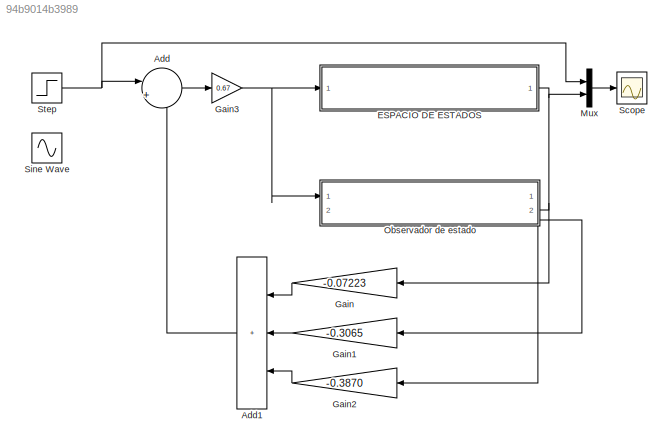
MODEL slx_94b9014b3989
KIND model
CONFIG AbsTol = auto
CONFIG EnableMultiTasking = off
CONFIG FixedStep = auto
CONFIG MaxStep = auto
CONFIG MinStep = auto
CONFIG RelTol = 1e-3
CONFIG SampleTimeConstraint = Unconstrained
CONFIG SolverName = VariableStepAuto
CONFIG StartTime = 0.0
CONFIG StopTime = 10
BLOCK [Sum] Add
  Inputs = |+-
  Ports = [2, 1]
BLOCK [Sum] Add1
  IconShape = rectangular
  Inputs = +++
  Ports = [3, 1]
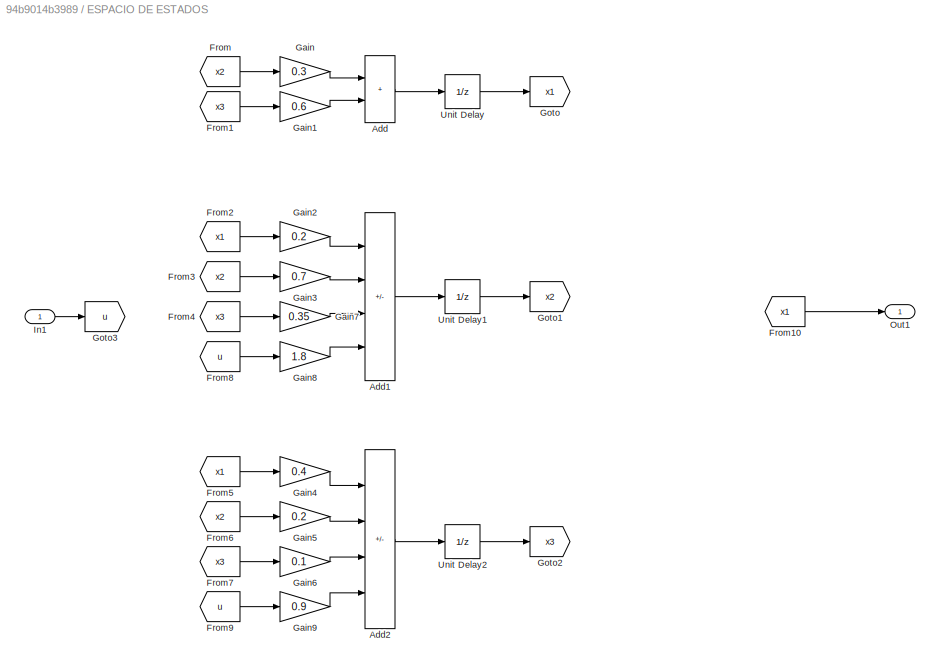
BLOCK [SubSystem] ESPACIO DE ESTADOS
  Ports = [1, 1]
  RequestExecContextInheritance = off
BLOCK [Sum] ESPACIO DE ESTADOS/Add
  IconShape = rectangular
  Ports = [2, 1]
BLOCK [Sum] ESPACIO DE ESTADOS/Add1
  IconShape = rectangular
  Inputs = +--+
  Ports = [4, 1]
BLOCK [Sum] ESPACIO DE ESTADOS/Add2
  IconShape = rectangular
  Inputs = -+++
  Ports = [4, 1]
BLOCK [From] ESPACIO DE ESTADOS/From
  GotoTag = x2
BLOCK [From] ESPACIO DE ESTADOS/From1
  GotoTag = x3
BLOCK [From] ESPACIO DE ESTADOS/From10
  GotoTag = x1
BLOCK [From] ESPACIO DE ESTADOS/From2
  GotoTag = x1
BLOCK [From] ESPACIO DE ESTADOS/From3
  GotoTag = x2
BLOCK [From] ESPACIO DE ESTADOS/From4
  GotoTag = x3
BLOCK [From] ESPACIO DE ESTADOS/From5
  GotoTag = x1
BLOCK [From] ESPACIO DE ESTADOS/From6
  GotoTag = x2
BLOCK [From] ESPACIO DE ESTADOS/From7
  GotoTag = x3
BLOCK [From] ESPACIO DE ESTADOS/From8
  GotoTag = u
BLOCK [From] ESPACIO DE ESTADOS/From9
  GotoTag = u
BLOCK [Gain] ESPACIO DE ESTADOS/Gain
  Gain = 0.3
BLOCK [Gain] ESPACIO DE ESTADOS/Gain1
  Gain = 0.6
BLOCK [Gain] ESPACIO DE ESTADOS/Gain2
  Gain = 0.2
BLOCK [Gain] ESPACIO DE ESTADOS/Gain3
  Gain = 0.7
BLOCK [Gain] ESPACIO DE ESTADOS/Gain4
  Gain = 0.4
BLOCK [Gain] ESPACIO DE ESTADOS/Gain5
  Gain = 0.2
BLOCK [Gain] ESPACIO DE ESTADOS/Gain6
  Gain = 0.1
BLOCK [Gain] ESPACIO DE ESTADOS/Gain7
  Gain = 0.35
BLOCK [Gain] ESPACIO DE ESTADOS/Gain8
  Gain = 1.8
BLOCK [Gain] ESPACIO DE ESTADOS/Gain9
  Gain = 0.9
BLOCK [Goto] ESPACIO DE ESTADOS/Goto
  GotoTag = x1
BLOCK [Goto] ESPACIO DE ESTADOS/Goto1
  GotoTag = x2
BLOCK [Goto] ESPACIO DE ESTADOS/Goto2
  GotoTag = x3
BLOCK [Goto] ESPACIO DE ESTADOS/Goto3
  GotoTag = u
BLOCK [Inport] ESPACIO DE ESTADOS/In1
BLOCK [Outport] ESPACIO DE ESTADOS/Out1
BLOCK [UnitDelay] ESPACIO DE ESTADOS/Unit Delay
  HasFrameUpgradeWarning = on
  SampleTime = -1
BLOCK [UnitDelay] ESPACIO DE ESTADOS/Unit Delay1
  HasFrameUpgradeWarning = on
  SampleTime = -1
BLOCK [UnitDelay] ESPACIO DE ESTADOS/Unit Delay2
  HasFrameUpgradeWarning = on
  SampleTime = -1
BLOCK [Gain] Gain
  Gain = -0.07223
BLOCK [Gain] Gain1
  Gain = -0.3065
BLOCK [Gain] Gain2
  Gain = -0.3870
BLOCK [Gain] Gain3
  Gain = 0.67
BLOCK [Mux] Mux
  DisplayOption = bar
  Inputs = 2
  Ports = [2, 1]
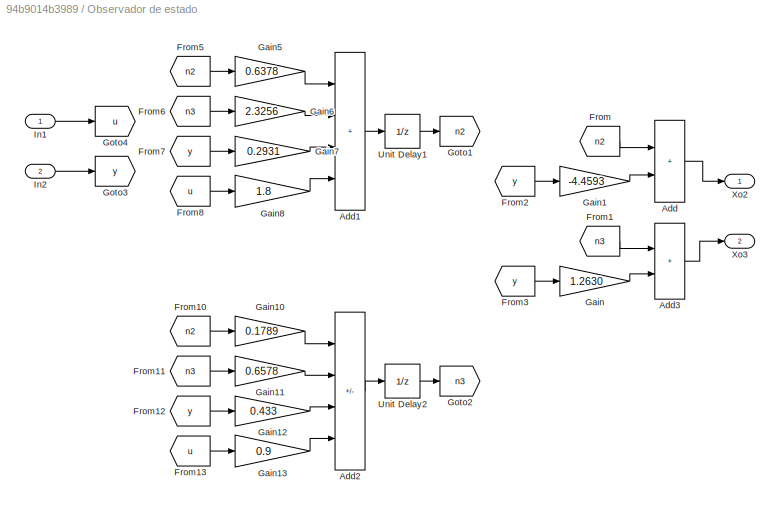
BLOCK [SubSystem] Observador de estado
  PortSchema = {"entries":[{"content":{"sides":[{"content":{"connectorIds":["In1"]},"type":"ConnectorPlacement.EquallySpacedRectSide","uuid":"9933af09-e30a-4a3c-a0e3-dffec2223d50"},{"content":{"connectorIds":["In2"],"side":"RIGHT"},"type":"ConnectorPlacement.EquallySpacedRectSide","uuid":"a5fb4d5c-b0b2-4fa6-9ed9-ad5917edf078"},{"content":{"side":"TOP"},"type":"ConnectorPlacement.EquallySpacedRectSide","uuid":"67...<+378ch>
  Ports = [2, 2]
  RequestExecContextInheritance = off
BLOCK [Sum] Observador de estado/Add
  IconShape = rectangular
  Ports = [2, 1]
BLOCK [Sum] Observador de estado/Add1
  IconShape = rectangular
  Inputs = ++++
  Ports = [4, 1]
BLOCK [Sum] Observador de estado/Add2
  IconShape = rectangular
  Inputs = ---+
  Ports = [4, 1]
BLOCK [Sum] Observador de estado/Add3
  IconShape = rectangular
  Ports = [2, 1]
BLOCK [From] Observador de estado/From
  GotoTag = n2
BLOCK [From] Observador de estado/From1
  GotoTag = n3
BLOCK [From] Observador de estado/From10
  GotoTag = n2
BLOCK [From] Observador de estado/From11
  GotoTag = n3
BLOCK [From] Observador de estado/From12
  GotoTag = y
BLOCK [From] Observador de estado/From13
  GotoTag = u
BLOCK [From] Observador de estado/From2
  GotoTag = y
BLOCK [From] Observador de estado/From3
  GotoTag = y
BLOCK [From] Observador de estado/From5
  GotoTag = n2
BLOCK [From] Observador de estado/From6
  GotoTag = n3
BLOCK [From] Observador de estado/From7
  GotoTag = y
BLOCK [From] Observador de estado/From8
  GotoTag = u
BLOCK [Gain] Observador de estado/Gain
  Gain = 1.2630
BLOCK [Gain] Observador de estado/Gain1
  Gain = -4.4593
BLOCK [Gain] Observador de estado/Gain10
  Gain = 0.1789
BLOCK [Gain] Observador de estado/Gain11
  Gain = 0.6578
BLOCK [Gain] Observador de estado/Gain12
  Gain = 0.433
BLOCK [Gain] Observador de estado/Gain13
  Gain = 0.9
BLOCK [Gain] Observador de estado/Gain5
  Gain = 0.6378
BLOCK [Gain] Observador de estado/Gain6
  Gain = 2.3256
BLOCK [Gain] Observador de estado/Gain7
  Gain = 0.2931
BLOCK [Gain] Observador de estado/Gain8
  Gain = 1.8
BLOCK [Goto] Observador de estado/Goto1
  GotoTag = n2
BLOCK [Goto] Observador de estado/Goto2
  GotoTag = n3
BLOCK [Goto] Observador de estado/Goto3
  GotoTag = y
BLOCK [Goto] Observador de estado/Goto4
  GotoTag = u
BLOCK [Inport] Observador de estado/In1
BLOCK [Inport] Observador de estado/In2
  Port = 2
BLOCK [UnitDelay] Observador de estado/Unit Delay1
  HasFrameUpgradeWarning = on
  SampleTime = -1
BLOCK [UnitDelay] Observador de estado/Unit Delay2
  HasFrameUpgradeWarning = on
  SampleTime = -1
BLOCK [Outport] Observador de estado/Xo2
BLOCK [Outport] Observador de estado/Xo3
  Port = 2
BLOCK [Scope] Scope
  Floating = off
  NumInputPorts = 1
  Ports = [1]
  ScopeSpecificationString = Simulink.scopes.TimeScopeBlockCfg('CurrentConfiguration', extmgr.ConfigurationSet(extmgr.Configuration('Core','General UI',true),extmgr.Configuration('Core','Source UI',true),extmgr.Configuration('Sources','WiredSimulink',true),extmgr.Configuration('Visuals','Time Domain',true,'SerializedDisplays',{struct('MinYLimReal','-3.12076','MaxYLimReal','3.12653','YLabelReal','','MinYLimMag','0.00000','MaxY...<+1466ch>
BLOCK [Sin] Sine Wave
  Ports = [0, 1]
  SampleTime = 0
BLOCK [Step] Step
  SampleTime = 0
LINE Add1:1 -> Add:2
LINE Add:1 -> Gain3:1
LINE ESPACIO DE ESTADOS/Add1:1 -> ESPACIO DE ESTADOS/Unit Delay1:1
LINE ESPACIO DE ESTADOS/Add2:1 -> ESPACIO DE ESTADOS/Unit Delay2:1
LINE ESPACIO DE ESTADOS/Add:1 -> ESPACIO DE ESTADOS/Unit Delay:1
LINE ESPACIO DE ESTADOS/From10:1 -> ESPACIO DE ESTADOS/Out1:1
LINE ESPACIO DE ESTADOS/From1:1 -> ESPACIO DE ESTADOS/Gain1:1
LINE ESPACIO DE ESTADOS/From2:1 -> ESPACIO DE ESTADOS/Gain2:1
LINE ESPACIO DE ESTADOS/From3:1 -> ESPACIO DE ESTADOS/Gain3:1
LINE ESPACIO DE ESTADOS/From4:1 -> ESPACIO DE ESTADOS/Gain7:1
LINE ESPACIO DE ESTADOS/From5:1 -> ESPACIO DE ESTADOS/Gain4:1
LINE ESPACIO DE ESTADOS/From6:1 -> ESPACIO DE ESTADOS/Gain5:1
LINE ESPACIO DE ESTADOS/From7:1 -> ESPACIO DE ESTADOS/Gain6:1
LINE ESPACIO DE ESTADOS/From8:1 -> ESPACIO DE ESTADOS/Gain8:1
LINE ESPACIO DE ESTADOS/From9:1 -> ESPACIO DE ESTADOS/Gain9:1
LINE ESPACIO DE ESTADOS/From:1 -> ESPACIO DE ESTADOS/Gain:1
LINE ESPACIO DE ESTADOS/Gain1:1 -> ESPACIO DE ESTADOS/Add:2
LINE ESPACIO DE ESTADOS/Gain2:1 -> ESPACIO DE ESTADOS/Add1:1
LINE ESPACIO DE ESTADOS/Gain3:1 -> ESPACIO DE ESTADOS/Add1:2
LINE ESPACIO DE ESTADOS/Gain4:1 -> ESPACIO DE ESTADOS/Add2:1
LINE ESPACIO DE ESTADOS/Gain5:1 -> ESPACIO DE ESTADOS/Add2:2
LINE ESPACIO DE ESTADOS/Gain6:1 -> ESPACIO DE ESTADOS/Add2:3
LINE ESPACIO DE ESTADOS/Gain7:1 -> ESPACIO DE ESTADOS/Add1:3
LINE ESPACIO DE ESTADOS/Gain8:1 -> ESPACIO DE ESTADOS/Add1:4
LINE ESPACIO DE ESTADOS/Gain9:1 -> ESPACIO DE ESTADOS/Add2:4
LINE ESPACIO DE ESTADOS/Gain:1 -> ESPACIO DE ESTADOS/Add:1
LINE ESPACIO DE ESTADOS/In1:1 -> ESPACIO DE ESTADOS/Goto3:1
LINE ESPACIO DE ESTADOS/Unit Delay1:1 -> ESPACIO DE ESTADOS/Goto1:1
LINE ESPACIO DE ESTADOS/Unit Delay2:1 -> ESPACIO DE ESTADOS/Goto2:1
LINE ESPACIO DE ESTADOS/Unit Delay:1 -> ESPACIO DE ESTADOS/Goto:1
NET ESPACIO DE ESTADOS:1 -> Gain:1, Mux:2, Observador de estado:2
LINE Gain1:1 -> Add1:2
LINE Gain2:1 -> Add1:3
NET Gain3:1 -> ESPACIO DE ESTADOS:1, Observador de estado:1
LINE Gain:1 -> Add1:1
LINE Mux:1 -> Scope:1
LINE Observador de estado/Add1:1 -> Observador de estado/Unit Delay1:1
LINE Observador de estado/Add2:1 -> Observador de estado/Unit Delay2:1
LINE Observador de estado/Add3:1 -> Observador de estado/Xo3:1
LINE Observador de estado/Add:1 -> Observador de estado/Xo2:1
LINE Observador de estado/From10:1 -> Observador de estado/Gain10:1
LINE Observador de estado/From11:1 -> Observador de estado/Gain11:1
LINE Observador de estado/From12:1 -> Observador de estado/Gain12:1
LINE Observador de estado/From13:1 -> Observador de estado/Gain13:1
LINE Observador de estado/From1:1 -> Observador de estado/Add3:1
LINE Observador de estado/From2:1 -> Observador de estado/Gain1:1
LINE Observador de estado/From3:1 -> Observador de estado/Gain:1
LINE Observador de estado/From5:1 -> Observador de estado/Gain5:1
LINE Observador de estado/From6:1 -> Observador de estado/Gain6:1
LINE Observador de estado/From7:1 -> Observador de estado/Gain7:1
LINE Observador de estado/From8:1 -> Observador de estado/Gain8:1
LINE Observador de estado/From:1 -> Observador de estado/Add:1
LINE Observador de estado/Gain10:1 -> Observador de estado/Add2:1
LINE Observador de estado/Gain11:1 -> Observador de estado/Add2:2
LINE Observador de estado/Gain12:1 -> Observador de estado/Add2:3
LINE Observador de estado/Gain13:1 -> Observador de estado/Add2:4
LINE Observador de estado/Gain1:1 -> Observador de estado/Add:2
LINE Observador de estado/Gain5:1 -> Observador de estado/Add1:1
LINE Observador de estado/Gain6:1 -> Observador de estado/Add1:2
LINE Observador de estado/Gain7:1 -> Observador de estado/Add1:3
LINE Observador de estado/Gain8:1 -> Observador de estado/Add1:4
LINE Observador de estado/Gain:1 -> Observador de estado/Add3:2
LINE Observador de estado/In1:1 -> Observador de estado/Goto4:1
LINE Observador de estado/In2:1 -> Observador de estado/Goto3:1
LINE Observador de estado/Unit Delay1:1 -> Observador de estado/Goto1:1
LINE Observador de estado/Unit Delay2:1 -> Observador de estado/Goto2:1
LINE Observador de estado:1 -> Gain1:1
LINE Observador de estado:2 -> Gain2:1
NET Step:1 -> Add:1, Mux:1
note: NET lines group one-source signal fan-out (src -> all destinations, sorted); 1:1 wires keep LINE
